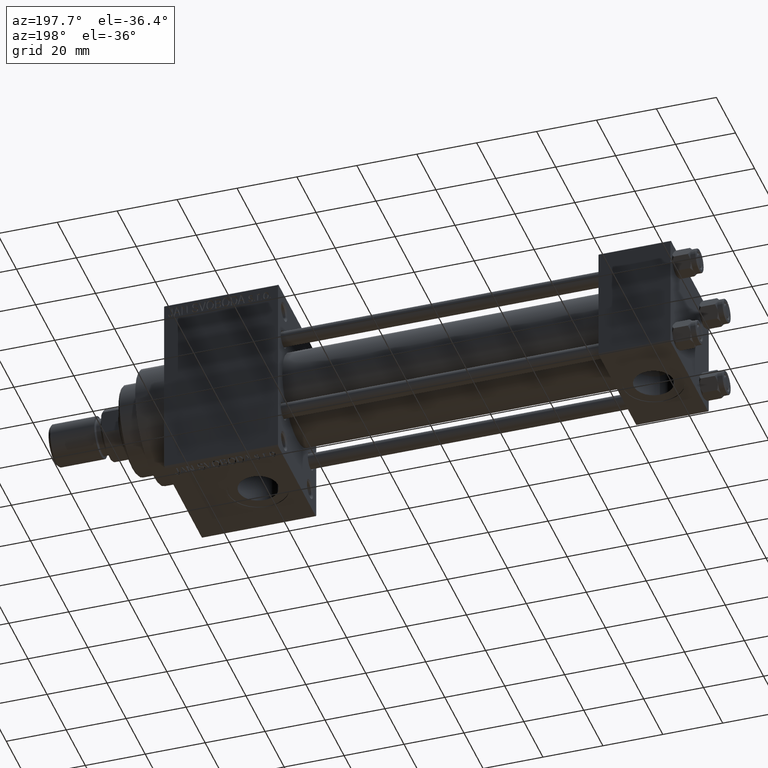
[diagram: clean part render]
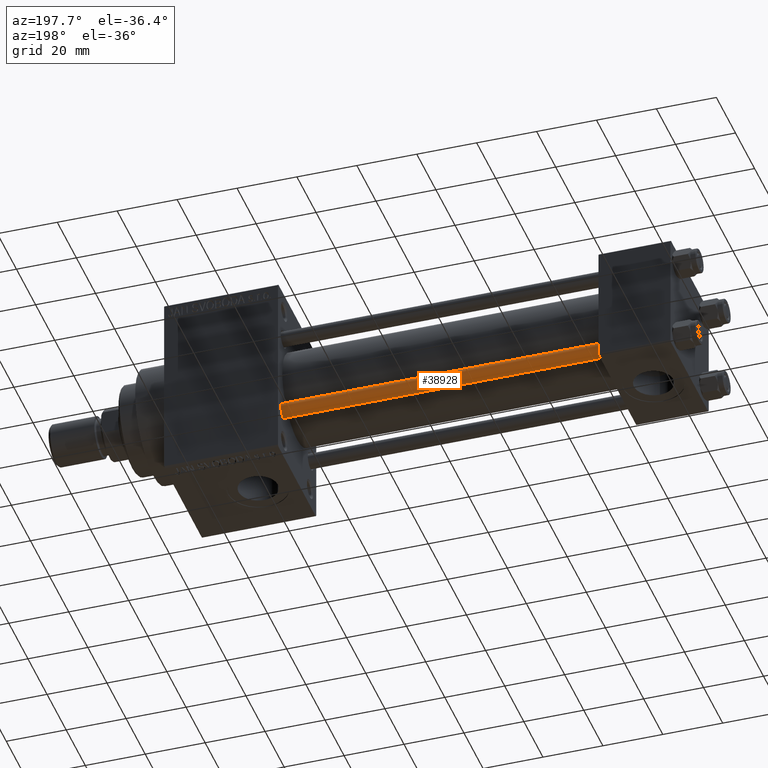
[diagram: same view with one face highlighted and labeled with its STEP entity id]
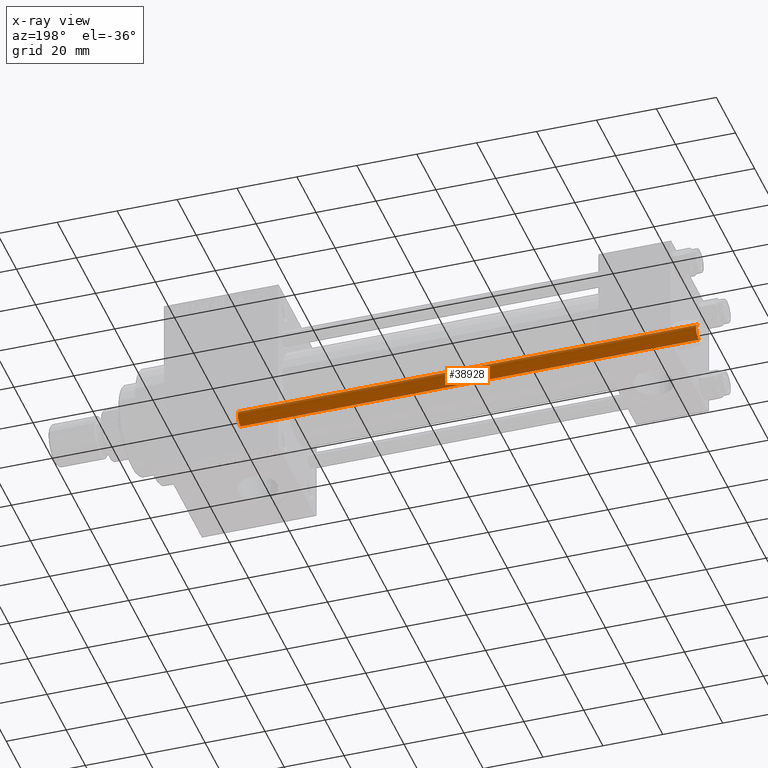
[diagram: x-ray of the same camera — body ghosted, the highlighted face saturated]
A machine part, auxiliary view. The second image highlights one B-rep face of the part: STEP entity #38928.
The next image is the same camera in x-ray: the body ghosted, the highlighted face saturated — about 0% of this face is hidden behind the body in this view.
In plain terms, the highlighted cylindrical surface (edge-blend (fillet) strip) has radius 2.5 mm, axis along (1, -0, 0).
Its self-contained STEP definition (entity closure, byte-faithful):
#340 = EDGE_LOOP ( 'NONE', ( #29468, #35519, #33355, #6256 ) ) ;
#1221 = DIRECTION ( 'NONE',  ( 0.000000000000000000, 0.000000000000000000, -1.000000000000000000 ) ) ;
#2078 = CARTESIAN_POINT ( 'NONE',  ( 2.500000000000000000, 3.061616997868383141E-16, 153.5000000000000284 ) ) ;
#4630 = CARTESIAN_POINT ( 'NONE',  ( 0.000000000000000000, 0.000000000000000000, 0.5000000000000281997 ) ) ;
#5007 = AXIS2_PLACEMENT_3D ( 'NONE', #26739, #1221, #30821 ) ;
#6013 = VECTOR ( 'NONE', #23324, 1000.000000000000000 ) ;
#6256 = ORIENTED_EDGE ( 'NONE', *, *, #41488, .F. ) ;
#7155 = EDGE_CURVE ( 'NONE', #18882, #8439, #28838, .T. ) ;
#7244 = AXIS2_PLACEMENT_3D ( 'NONE', #7968, #30565, #8199 ) ;
#7968 = CARTESIAN_POINT ( 'NONE',  ( 0.000000000000000000, 0.000000000000000000, 154.0000000000000000 ) ) ;
#8199 = DIRECTION ( 'NONE',  ( -1.000000000000000000, 0.000000000000000000, 0.000000000000000000 ) ) ;
#8427 = LINE ( 'NONE', #15868, #6013 ) ;
#8439 = VERTEX_POINT ( 'NONE', #2078 ) ;
#10800 = AXIS2_PLACEMENT_3D ( 'NONE', #4630, #33731, #22213 ) ;
#15868 = CARTESIAN_POINT ( 'NONE',  ( 2.500000000000000000, 3.061616997868383141E-16, 154.0000000000000000 ) ) ;
#18882 = VERTEX_POINT ( 'NONE', #41752 ) ;
#19934 = LINE ( 'NONE', #20169, #25226 ) ;
#20169 = CARTESIAN_POINT ( 'NONE',  ( -2.500000000000000000, 0.000000000000000000, 154.0000000000000000 ) ) ;
#22213 = DIRECTION ( 'NONE',  ( 1.000000000000000000, 0.000000000000000000, 0.000000000000000000 ) ) ;
#23324 = DIRECTION ( 'NONE',  ( -0.000000000000000000, -0.000000000000000000, -1.000000000000000000 ) ) ;
#25226 = VECTOR ( 'NONE', #34354, 1000.000000000000000 ) ;
#26264 = FACE_OUTER_BOUND ( 'NONE', #340, .T. ) ;
#26739 = CARTESIAN_POINT ( 'NONE',  ( 0.000000000000000000, 0.000000000000000000, 153.5000000000000284 ) ) ;
#28257 = CARTESIAN_POINT ( 'NONE',  ( -2.500000000000000000, 0.000000000000000000, 0.5000000000000281997 ) ) ;
#28838 = CIRCLE ( 'NONE', #5007, 2.500000000000000000 ) ;
#29468 = ORIENTED_EDGE ( 'NONE', *, *, #7155, .T. ) ;
#30157 = EDGE_CURVE ( 'NONE', #31385, #37721, #37657, .T. ) ;
#30565 = DIRECTION ( 'NONE',  ( -0.000000000000000000, -0.000000000000000000, -1.000000000000000000 ) ) ;
#30821 = DIRECTION ( 'NONE',  ( 1.000000000000000000, 0.000000000000000000, 0.000000000000000000 ) ) ;
#31385 = VERTEX_POINT ( 'NONE', #42081 ) ;
#33355 = ORIENTED_EDGE ( 'NONE', *, *, #30157, .T. ) ;
#33731 = DIRECTION ( 'NONE',  ( -0.000000000000000000, -0.000000000000000000, 1.000000000000000000 ) ) ;
#34354 = DIRECTION ( 'NONE',  ( -0.000000000000000000, -0.000000000000000000, -1.000000000000000000 ) ) ;
#35519 = ORIENTED_EDGE ( 'NONE', *, *, #42812, .T. ) ;
#37657 = CIRCLE ( 'NONE', #10800, 2.500000000000000000 ) ;
#37721 = VERTEX_POINT ( 'NONE', #28257 ) ;
#38928 = ADVANCED_FACE ( 'NONE', ( #26264 ), #40917, .T. ) ;
#40917 = CYLINDRICAL_SURFACE ( 'NONE', #7244, 2.500000000000000000 ) ;
#41488 = EDGE_CURVE ( 'NONE', #18882, #37721, #19934, .T. ) ;
#41752 = CARTESIAN_POINT ( 'NONE',  ( -2.500000000000000000, 0.000000000000000000, 153.5000000000000284 ) ) ;
#42081 = CARTESIAN_POINT ( 'NONE',  ( 2.500000000000000000, 3.061616997868383141E-16, 0.5000000000000281997 ) ) ;
#42812 = EDGE_CURVE ( 'NONE', #8439, #31385, #8427, .T. ) ;